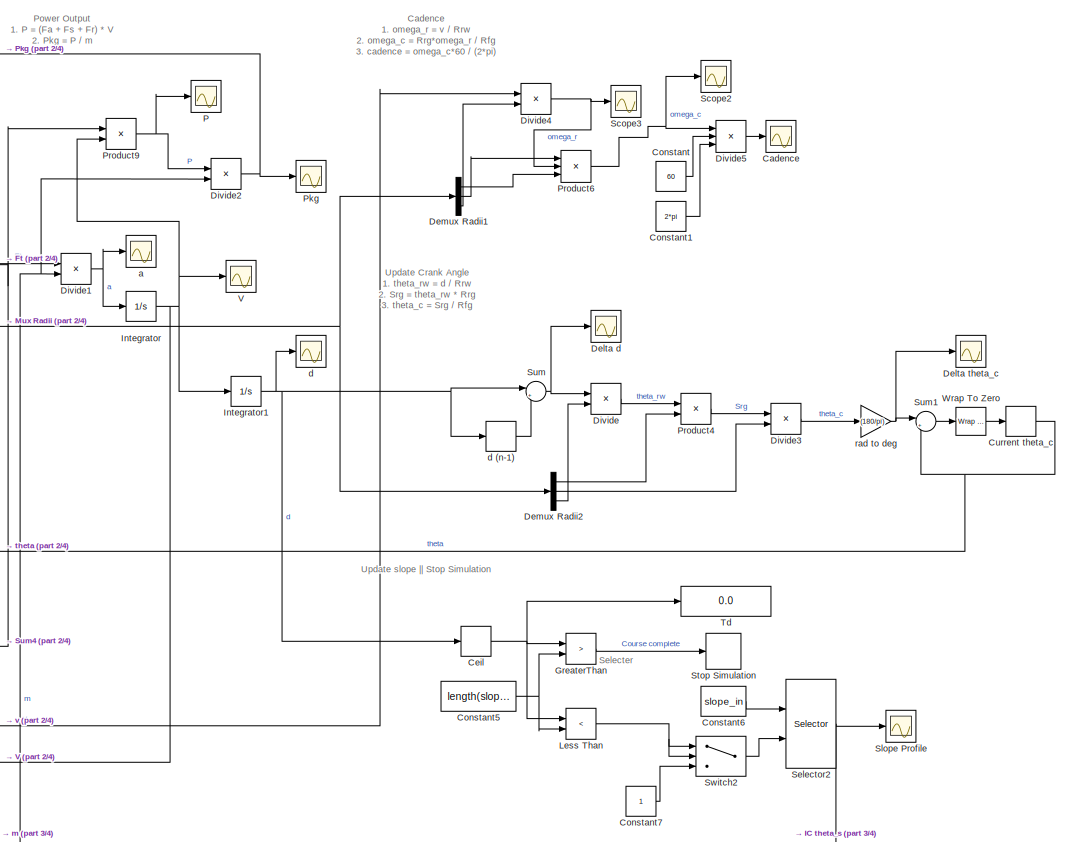
[diagram: root canvas - part 1/4, top center region]
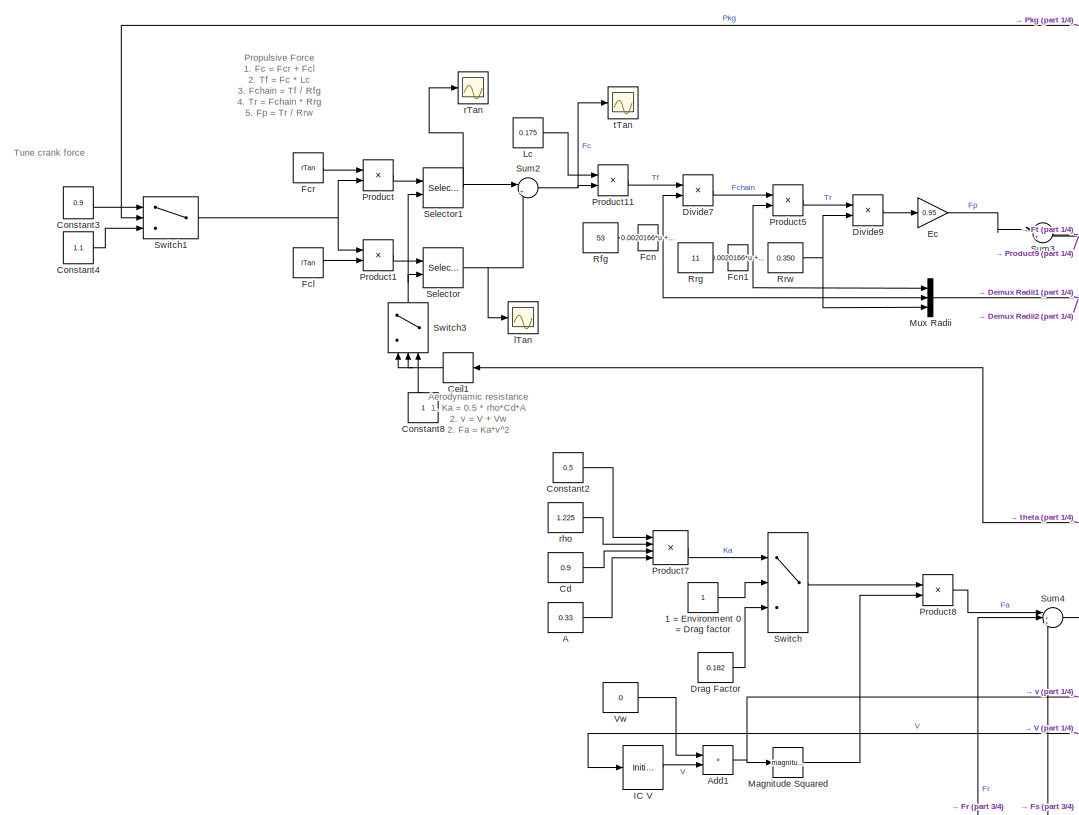
[diagram: root canvas - part 2/4, middle left region]
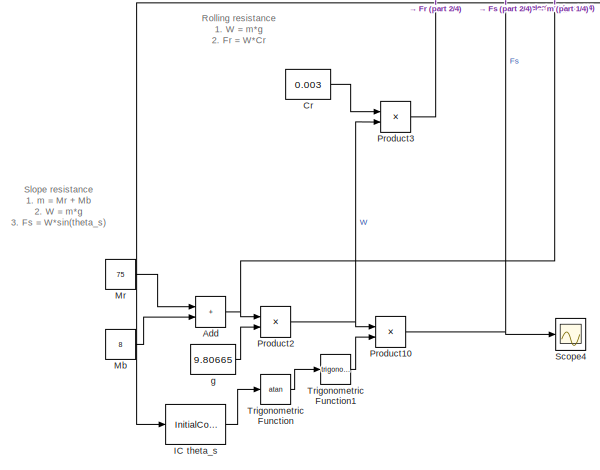
[diagram: root canvas - part 3/4, bottom left region]
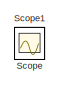
[diagram: root canvas - part 4/4, bottom right region]
MODEL slx_1887d47bb23c
KIND model
CONFIG AbsTol = auto
CONFIG EnableMultiTasking = off
CONFIG FixedStep = 0.5
CONFIG MaxStep = auto
CONFIG MinStep = auto
CONFIG RelTol = 1e-3
CONFIG SampleTimeConstraint = Unconstrained
CONFIG Solver = VariableStepAuto
CONFIG SolverName = VariableStepAuto
CONFIG StartTime = 0.0
CONFIG StopTime = 300
BLOCK [Constant] 1 = Environment 0 = Drag factor
BLOCK [Constant] A
  Value = 0.33
BLOCK [Sum] Add
  IconShape = rectangular
  Ports = [2, 1]
BLOCK [Sum] Add1
  IconShape = rectangular
  Ports = [2, 1]
BLOCK [Scope] Cadence
  Floating = off
  NumInputPorts = 1
  Ports = [1]
  ScopeSpecificationString = Simulink.scopes.TimeScopeBlockCfg('CurrentConfiguration', extmgr.ConfigurationSet(extmgr.Configuration('Core','General UI',true),extmgr.Configuration('Core','Source UI',true),extmgr.Configuration('Sources','WiredSimulink',true,'DataLoggingVariableName','ScopeData11'),extmgr.Configuration('Visuals','Time Domain',true,'SerializedDisplays',{struct('MinYLimReal','-170.04681','MaxYLimReal','1660.57911'...<+1385ch>
BLOCK [Constant] Cd
  Value = 0.9
BLOCK [Rounding] Ceil
  Operator = ceil
BLOCK [Rounding] Ceil1
  Operator = ceil
BLOCK [Constant] Constant
  Value = 60
BLOCK [Constant] Constant1
  Value = 2*pi
BLOCK [Constant] Constant2
  Value = 0.5
BLOCK [Constant] Constant3
  Value = 0.9
BLOCK [Constant] Constant4
  SampleTime = Inf
  Value = 1.1
BLOCK [Constant] Constant5
  Value = length(slope_in)
BLOCK [Constant] Constant6
  Value = slope_in
BLOCK [Constant] Constant7
BLOCK [Constant] Constant8
  NameLocation = right
BLOCK [Constant] Cr
  Value = 0.003
BLOCK [Memory] Current theta_c
BLOCK [Scope] Delta d
  Floating = off
  NumInputPorts = 1
  Ports = [1]
  ScopeSpecificationString = Simulink.scopes.TimeScopeBlockCfg('CurrentConfiguration', extmgr.ConfigurationSet(extmgr.Configuration('Core','General UI',true),extmgr.Configuration('Core','Source UI',true),extmgr.Configuration('Sources','WiredSimulink',true,'DataLoggingVariableName','ScopeData13'),extmgr.Configuration('Visuals','Time Domain',true,'SerializedDisplays',{struct('MinYLimReal','-0.70948','MaxYLimReal','6.38535','YLa...<+1363ch>
BLOCK [Scope] Delta theta_c
  Floating = off
  NumInputPorts = 1
  Ports = [1]
  ScopeSpecificationString = Simulink.scopes.TimeScopeBlockCfg('CurrentConfiguration', extmgr.ConfigurationSet(extmgr.Configuration('Core','General UI',true),extmgr.Configuration('Core','Source UI',true),extmgr.Configuration('Sources','WiredSimulink',true,'DataLoggingVariableName','ScopeData14'),extmgr.Configuration('Visuals','Time Domain',true,'SerializedDisplays',{struct('MinYLimReal','-4.55654','MaxYLimReal','-2.05635','YL...<+1391ch>
BLOCK [Demux] Demux Radii1
  Outputs = 3
  Ports = [1, 3]
BLOCK [Demux] Demux Radii2
  Outputs = 3
  Ports = [1, 3]
BLOCK [Product] Divide
  Inputs = */
  Ports = [2, 1]
BLOCK [Product] Divide1
  Inputs = */
  Ports = [2, 1]
BLOCK [Product] Divide2
  Inputs = */
  Ports = [2, 1]
BLOCK [Product] Divide3
  Inputs = */
  Ports = [2, 1]
BLOCK [Product] Divide4
  Inputs = */
  Ports = [2, 1]
BLOCK [Product] Divide5
  Inputs = **/
  Ports = [3, 1]
BLOCK [Product] Divide7
  Inputs = */
  Ports = [2, 1]
BLOCK [Product] Divide9
  Inputs = */
  Ports = [2, 1]
BLOCK [Constant] Drag Factor
  Value = 0.182
BLOCK [Gain] Ec
  Gain = 0.95
BLOCK [Constant] Fcl
  Value = lTan
BLOCK [Fcn] Fcn
  Expr = 0.0020166*u + 0.00028032
BLOCK [Fcn] Fcn1
  Expr = 0.0020166*u + 0.00028032
BLOCK [Constant] Fcr
  Value = rTan
BLOCK [RelationalOperator] GreaterThan
  InputSameDT = off
  Operator = >
  OutDataTypeStr = boolean
  Ports = [2, 1]
  RndMeth = Simplest
BLOCK [InitialCondition] IC V
  Value = 0.1
BLOCK [InitialCondition] IC theta_s
  Value = slope_in(1)
BLOCK [Integrator] Integrator
  Ports = [1, 1]
BLOCK [Integrator] Integrator1
  Ports = [1, 1]
BLOCK [Constant] Lc
  Value = 0.175
BLOCK [RelationalOperator] Less Than
  InputSameDT = off
  Operator = <
  OutDataTypeStr = boolean
  Ports = [2, 1]
  RndMeth = Simplest
BLOCK [Math] Magnitude Squared
  Operator = magnitude^2
  Ports = [1, 1]
BLOCK [Constant] Mb 
  Value = 8
BLOCK [Constant] Mr 
  Value = 75
BLOCK [Mux] Mux Radii
  DisplayOption = bar
  Inputs = 3
  Ports = [3, 1]
BLOCK [Scope] P
  Floating = off
  NumInputPorts = 1
  Ports = [1]
  ScopeSpecificationString = Simulink.scopes.TimeScopeBlockCfg('CurrentConfiguration', extmgr.ConfigurationSet(extmgr.Configuration('Core','General UI',true),extmgr.Configuration('Core','Source UI',true),extmgr.Configuration('Sources','WiredSimulink',true,'DataLoggingVariableName','P','DataLogging',true),extmgr.Configuration('Visuals','Time Domain',true,'SerializedDisplays',{struct('MinYLimReal','-40.25526','MaxYLimReal','362...<+1409ch>
BLOCK [Scope] Pkg
  Floating = off
  NumInputPorts = 1
  Ports = [1]
  ScopeSpecificationString = Simulink.scopes.TimeScopeBlockCfg('CurrentConfiguration', extmgr.ConfigurationSet(extmgr.Configuration('Core','General UI',true),extmgr.Configuration('Core','Source UI',true),extmgr.Configuration('Sources','WiredSimulink',true,'DataLoggingVariableName','ScopeData4'),extmgr.Configuration('Visuals','Time Domain',true,'SerializedDisplays',{struct('MinYLimReal','-0.485','MaxYLimReal','4.36503','YLabel...<+1358ch>
BLOCK [Product] Product
  Ports = [2, 1]
BLOCK [Product] Product1
  Ports = [2, 1]
BLOCK [Product] Product10
  Ports = [2, 1]
BLOCK [Product] Product11
  Ports = [2, 1]
BLOCK [Product] Product2
  Ports = [2, 1]
BLOCK [Product] Product3
  Ports = [2, 1]
BLOCK [Product] Product4
  Ports = [2, 1]
BLOCK [Product] Product5
  Ports = [2, 1]
BLOCK [Product] Product6
  Inputs = **/
  Ports = [3, 1]
BLOCK [Product] Product7
  Inputs = 4
  Ports = [4, 1]
BLOCK [Product] Product8
  Ports = [2, 1]
BLOCK [Product] Product9
  Ports = [2, 1]
BLOCK [Constant] Rfg
  Value = 53
BLOCK [Constant] Rrg
  Value = 11
BLOCK [Constant] Rrw
  Value = 0.350
BLOCK [Scope] Scope
  Floating = off
  IOType = viewer
  NumInputPorts = 1
  Ports = []
  ScopeSpecificationString = Simulink.scopes.TimeScopeBlockCfg('CurrentConfiguration', extmgr.ConfigurationSet(extmgr.Configuration('Core','General UI',true),extmgr.Configuration('Core','Source UI',true),extmgr.Configuration('Sources','WiredSimulink',true),extmgr.Configuration('Visuals','Time Domain',true,'SerializedDisplays',{struct('MinYLimReal','-0.875','MaxYLimReal','7.875','YLabelReal','','MinYLimMag','0.00000','MaxYLimM...<+3702ch>
BLOCK [Scope] Scope1
  Floating = off
  IOType = viewer
  NumInputPorts = 1
  Ports = []
  ScopeSpecificationString = Simulink.scopes.TimeScopeBlockCfg('CurrentConfiguration', extmgr.ConfigurationSet(extmgr.Configuration('Core','General UI',true),extmgr.Configuration('Core','Source UI',true),extmgr.Configuration('Sources','WiredSimulink',true,'DataLoggingVariableName','ScopeData1'),extmgr.Configuration('Visuals','Time Domain',true,'SerializedDisplays',{struct('MinYLimReal','27.5814','MaxYLimReal','35.4618','YLabe...<+1387ch>
BLOCK [Scope] Scope2
  Floating = off
  NumInputPorts = 1
  Ports = [1]
  ScopeSpecificationString = Simulink.scopes.TimeScopeBlockCfg('CurrentConfiguration', extmgr.ConfigurationSet(extmgr.Configuration('Core','General UI',true),extmgr.Configuration('Core','Source UI',true),extmgr.Configuration('Sources','WiredSimulink',true,'DataLoggingVariableName','ScopeData2'),extmgr.Configuration('Visuals','Time Domain',true,'SerializedDisplays',{struct('MinYLimReal','-17.80726','MaxYLimReal','173.89544','Y...<+1376ch>
BLOCK [Scope] Scope3
  Floating = off
  NumInputPorts = 1
  Ports = [1]
  ScopeSpecificationString = Simulink.scopes.TimeScopeBlockCfg('CurrentConfiguration', extmgr.ConfigurationSet(extmgr.Configuration('Core','General UI',true),extmgr.Configuration('Core','Source UI',true),extmgr.Configuration('Sources','WiredSimulink',true,'DataLoggingVariableName','ScopeData3'),extmgr.Configuration('Visuals','Time Domain',true,'SerializedDisplays',{struct('MinYLimReal','-3.73276','MaxYLimReal','36.45199','YLa...<+1370ch>
BLOCK [Scope] Scope4
  Floating = off
  NumInputPorts = 1
  Ports = [1]
  ScopeSpecificationString = Simulink.scopes.TimeScopeBlockCfg('CurrentConfiguration', extmgr.ConfigurationSet(extmgr.Configuration('Core','General UI',true),extmgr.Configuration('Core','Source UI',true),extmgr.Configuration('Sources','WiredSimulink',true,'DataLoggingVariableName','ScopeData4'),extmgr.Configuration('Visuals','Time Domain',true,'SerializedDisplays',{struct('MinYLimReal','1.48601','MaxYLimReal','3.48601','YLabe...<+1359ch>
BLOCK [Selector] Selector
  IndexOptions = Index vector (port)
  Indices = [1 3]
  InputPortWidth = 361
  OutputSizes = 1
  Ports = [2, 1]
BLOCK [Selector] Selector1
  IndexOptions = Index vector (port)
  Indices = [1 3]
  InputPortWidth = 361
  OutputSizes = 1
  Ports = [2, 1]
BLOCK [Selector] Selector2
  IndexOptions = Index vector (port)
  Indices = [1 3]
  InputPortWidth = length(slope_in)
  OutputSizes = 1
  Ports = [2, 1]
BLOCK [Scope] Slope Profile
  Floating = off
  NumInputPorts = 1
  Ports = [1]
  ScopeSpecificationString = Simulink.scopes.TimeScopeBlockCfg('CurrentConfiguration', extmgr.ConfigurationSet(extmgr.Configuration('Core','General UI',true),extmgr.Configuration('Core','Source UI',true),extmgr.Configuration('Sources','WiredSimulink',true,'DataLoggingVariableName','ScopeData6'),extmgr.Configuration('Visuals','Time Domain',true,'SerializedDisplays',{struct('MinYLimReal','0.00205','MaxYLimReal','0.00405','YLabe...<+1366ch>
BLOCK [Stop] Stop Simulation
BLOCK [Sum] Sum
  Inputs = |+-
  Ports = [2, 1]
BLOCK [Sum] Sum1
  Inputs = |++
  Ports = [2, 1]
BLOCK [Sum] Sum2
  Inputs = |++
  Ports = [2, 1]
BLOCK [Sum] Sum3
  Inputs = |+-
  Ports = [2, 1]
BLOCK [Sum] Sum4
  Inputs = |+++
  Ports = [3, 1]
BLOCK [Switch] Switch
  Criteria = u2 > Threshold
  InputSameDT = off
  SaturateOnIntegerOverflow = off
BLOCK [Switch] Switch1
  Criteria = u2 > Threshold
  InputSameDT = off
  OutDataTypeStr = double
  SaturateOnIntegerOverflow = off
  Threshold = targetPower
BLOCK [Switch] Switch2
  Criteria = u2 > Threshold
  InputSameDT = off
  SaturateOnIntegerOverflow = off
BLOCK [Switch] Switch3
  Criteria = u2 > Threshold
  InputSameDT = off
  NameLocation = right
  SaturateOnIntegerOverflow = off
BLOCK [Display] Td
  Decimation = 1
  Ports = [1]
BLOCK [Trigonometry] Trigonometric Function
  Operator = atan
  Ports = [1, 1]
BLOCK [Trigonometry] Trigonometric Function1
  Ports = [1, 1]
BLOCK [Scope] V
  Floating = off
  NumInputPorts = 1
  Ports = [1]
  ScopeSpecificationString = Simulink.scopes.TimeScopeBlockCfg('CurrentConfiguration', extmgr.ConfigurationSet(extmgr.Configuration('Core','General UI',true),extmgr.Configuration('Core','Source UI',true),extmgr.Configuration('Sources','WiredSimulink',true,'DataLoggingVariableName','ScopeData2'),extmgr.Configuration('Visuals','Time Domain',true,'SerializedDisplays',{struct('MinYLimReal','-1.41897','MaxYLimReal','12.7707','YLab...<+1360ch>
BLOCK [Constant] Vw
  Value = 0
BLOCK [Reference] Wrap To Zero  REF=simulink/Discontinuities/Wrap To Zero
  Ports = [1, 1]
  SourceBlock = simulink/Discontinuities/Wrap To Zero
  SourceProductBaseCode = SL
  SourceType = Wrap To Zero
BLOCK [Scope] a
  Floating = off
  NumInputPorts = 1
  Ports = [1]
  ScopeSpecificationString = Simulink.scopes.TimeScopeBlockCfg('CurrentConfiguration', extmgr.ConfigurationSet(extmgr.Configuration('Core','General UI',true),extmgr.Configuration('Core','Source UI',true),extmgr.Configuration('Sources','WiredSimulink',true,'DataLoggingVariableName','ScopeData1'),extmgr.Configuration('Visuals','Time Domain',true,'SerializedDisplays',{struct('MinYLimReal','722.83052','MaxYLimReal','2722.83052','...<+1378ch>
BLOCK [Scope] d
  Floating = off
  NumInputPorts = 1
  Ports = [1]
  ScopeSpecificationString = Simulink.scopes.TimeScopeBlockCfg('CurrentConfiguration', extmgr.ConfigurationSet(extmgr.Configuration('Core','General UI',true),extmgr.Configuration('Core','Source UI',true),extmgr.Configuration('Sources','WiredSimulink',true,'DataLoggingVariableName','ScopeData5'),extmgr.Configuration('Visuals','Time Domain',true,'SerializedDisplays',{struct('MinYLimReal','-397.45033','MaxYLimReal','3577.05293',...<+1378ch>
BLOCK [Memory] d (n-1)
BLOCK [Constant] g
  Value = 9.80665
BLOCK [Scope] lTan
  Floating = off
  NumInputPorts = 1
  Ports = [1]
  ScopeSpecificationString = Simulink.scopes.TimeScopeBlockCfg('CurrentConfiguration', extmgr.ConfigurationSet(extmgr.Configuration('Core','General UI',true),extmgr.Configuration('Core','Source UI',true),extmgr.Configuration('Sources','WiredSimulink',true,'DataLoggingVariableName','ScopeData8'),extmgr.Configuration('Visuals','Time Domain',true,'SerializedDisplays',{struct('MinYLimReal','238.28827','MaxYLimReal','306.37063','Y...<+1381ch>
BLOCK [Scope] rTan
  Floating = off
  NumInputPorts = 1
  Ports = [1]
  ScopeSpecificationString = Simulink.scopes.TimeScopeBlockCfg('CurrentConfiguration', extmgr.ConfigurationSet(extmgr.Configuration('Core','General UI',true),extmgr.Configuration('Core','Source UI',true),extmgr.Configuration('Sources','WiredSimulink',true,'DataLoggingVariableName','ScopeData7'),extmgr.Configuration('Visuals','Time Domain',true,'SerializedDisplays',{struct('MinYLimReal','38.71803','MaxYLimReal','49.78032','YLa...<+1402ch>
BLOCK [Gain] rad to deg
  Gain = (180/pi)
BLOCK [Constant] rho
  Value = 1.225
BLOCK [Scope] tTan
  Floating = off
  NumInputPorts = 1
  Ports = [1]
  ScopeSpecificationString = Simulink.scopes.TimeScopeBlockCfg('CurrentConfiguration', extmgr.ConfigurationSet(extmgr.Configuration('Core','General UI',true),extmgr.Configuration('Core','Source UI',true),extmgr.Configuration('Sources','WiredSimulink',true,'DataLoggingVariableName','ScopeData9'),extmgr.Configuration('Visuals','Time Domain',true,'SerializedDisplays',{struct('MinYLimReal','277.0063','MaxYLimReal','356.15095','YL...<+1371ch>
ANNOTATION (root): Aerodynamic resistance 1. Ka = 0.5 * rho*Cd*A 2. v = V + Vw 2. Fa = Ka*v^2
ANNOTATION (root): Cadence 1. omega_r = v / Rrw 2. omega_c = Rrg*omega_r / Rfg 3. cadence = omega_c*60 / (2*pi)
ANNOTATION (root): Power Output 1. P = (Fa + Fs + Fr) * V 2. Pkg = P / m
ANNOTATION (root): Propulsive Force 1. Fc = Fcr + Fcl 2. Tf = Fc * Lc 3. Fchain = Tf / Rfg 4. Tr = Fchain * Rrg 5. Fp = Tr / Rrw
ANNOTATION (root): Rolling resistance 1. W = m*g 2. Fr = W*Cr
ANNOTATION (root): Selecter
ANNOTATION (root): Slope resistance 1. m = Mr + Mb 2. W = m*g 3. Fs = W*sin(theta_s)
ANNOTATION (root): Tune crank force
ANNOTATION (root): Update Crank Angle 1. theta_rw = d / Rrw 2. Srg = theta_rw * Rrg 3. theta_c = Srg / Rfg
ANNOTATION (root): Update slope || Stop Simulation
LINE 1 = Environment 0 = Drag factor:1 -> Switch:2
LINE A:1 -> Product7:4
NET Add1:1 -> Divide4:1, Magnitude Squared:1
NET Add:1 -> Divide1:2, Divide2:2, Product2:1
LINE Cd:1 -> Product7:3
NET Ceil1:1 -> Switch3:1, Switch3:2
NET Ceil:1 -> GreaterThan:1, Less Than:1, Td:1
LINE Constant1:1 -> Divide5:3
LINE Constant2:1 -> Product7:1
LINE Constant3:1 -> Switch1:1
LINE Constant4:1 -> Switch1:3
NET Constant5:1 -> GreaterThan:2, Less Than:2
LINE Constant6:1 -> Selector2:1
LINE Constant7:1 -> Switch2:3
LINE Constant8:1 -> Switch3:3
LINE Constant:1 -> Divide5:2
LINE Cr:1 -> Product3:1
NET Current theta_c:1 -> Ceil1:1, Sum1:2
LINE Demux Radii1:1 -> Product6:3
LINE Demux Radii1:2 -> Product6:1
LINE Demux Radii1:3 -> Divide4:2
LINE Demux Radii2:1 -> Product4:2
LINE Demux Radii2:2 -> Divide3:2
LINE Demux Radii2:3 -> Divide:2
NET Divide1:1 -> Integrator:1, a:1
NET Divide2:1 -> Pkg:1, Switch1:2
LINE Divide3:1 -> rad to deg:1
NET Divide4:1 -> Product6:2, Scope3:1
LINE Divide5:1 -> Cadence:1
LINE Divide7:1 -> Product5:1
LINE Divide9:1 -> Ec:1
LINE Divide:1 -> Product4:1
LINE Drag Factor:1 -> Switch:3
LINE Ec:1 -> Sum3:1
LINE Fcl:1 -> Product1:2
NET Fcn1:1 -> Mux Radii:1, Product5:2
NET Fcn:1 -> Divide7:2, Mux Radii:2
LINE Fcr:1 -> Product:1
LINE GreaterThan:1 -> Stop Simulation:1
LINE IC V:1 -> Add1:2
LINE IC theta_s:1 -> Trigonometric Function:1
NET Integrator1:1 -> Ceil:1, Sum:1, d (n-1):1, d:1
NET Integrator:1 -> IC V:1, Integrator1:1, Product9:2, V:1
LINE Lc:1 -> Product11:1
NET Less Than:1 -> Switch2:1, Switch2:2
LINE Magnitude Squared:1 -> Product8:2
LINE Mb :1 -> Add:2
LINE Mr :1 -> Add:1
NET Mux Radii:1 -> Demux Radii1:1, Demux Radii2:1
NET Product10:1 -> Scope4:1, Sum4:3
LINE Product11:1 -> Divide7:1
LINE Product1:1 -> Selector:1
NET Product2:1 -> Product10:1, Product3:2
LINE Product3:1 -> Sum4:2
LINE Product4:1 -> Divide3:1
LINE Product5:1 -> Divide9:1
NET Product6:1 -> Divide5:1, Scope2:1
LINE Product7:1 -> Switch:1
LINE Product8:1 -> Sum4:1
NET Product9:1 -> Divide2:1, P:1
LINE Product:1 -> Selector1:1
LINE Rfg:1 -> Fcn:1
LINE Rrg:1 -> Fcn1:1
NET Rrw:1 -> Divide9:2, Mux Radii:3
NET Selector1:1 -> Sum2:1, rTan:1
NET Selector2:1 -> IC theta_s:1, Slope Profile:1
NET Selector:1 -> Sum2:2, lTan:1
LINE Sum1:1 -> Wrap To Zero:1
NET Sum2:1 -> Product11:2, tTan:1
LINE Sum3:1 -> Divide1:1
NET Sum4:1 -> Product9:1, Sum3:2
NET Sum:1 -> Delta d:1, Divide:1
NET Switch1:1 -> Product1:1, Product:2
LINE Switch2:1 -> Selector2:2
NET Switch3:1 -> Selector1:2, Selector:2
LINE Switch:1 -> Product8:1
LINE Trigonometric Function1:1 -> Product10:2
LINE Trigonometric Function:1 -> Trigonometric Function1:1
LINE Vw:1 -> Add1:1
LINE Wrap To Zero:1 -> Current theta_c:1
LINE d (n-1):1 -> Sum:2
LINE g:1 -> Product2:2
NET rad to deg:1 -> Delta theta_c:1, Sum1:1
LINE rho:1 -> Product7:2
note: NET lines group one-source signal fan-out (src -> all destinations, sorted); 1:1 wires keep LINE
